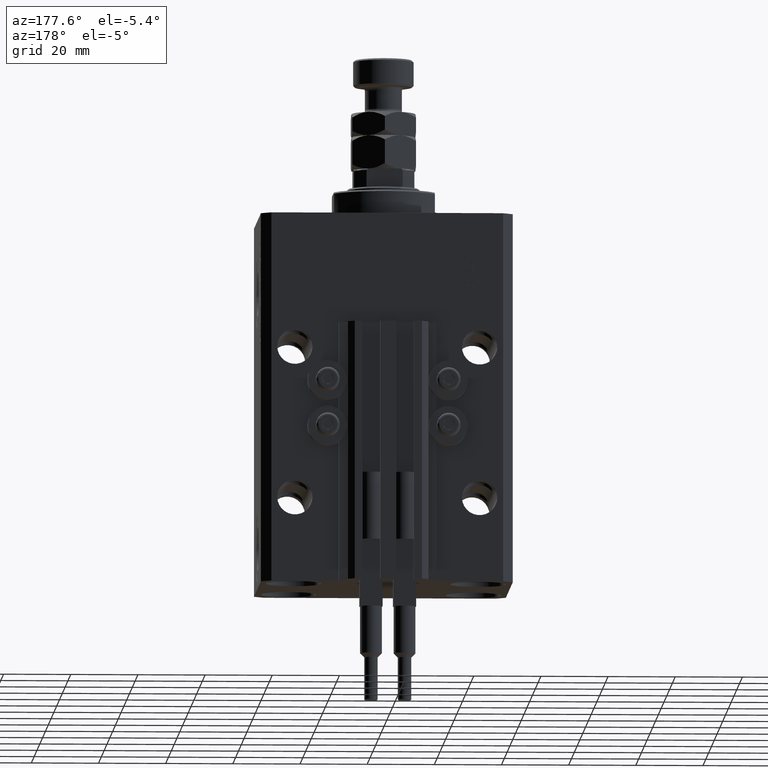
[diagram: clean part render]
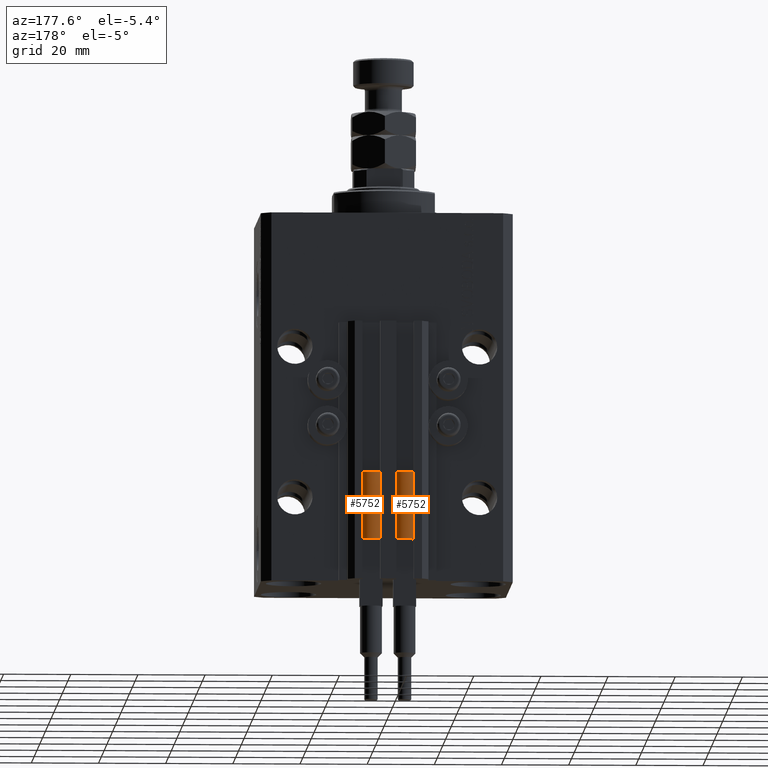
[diagram: same view with one multi-face feature highlighted, each face labeled with its STEP entity id]
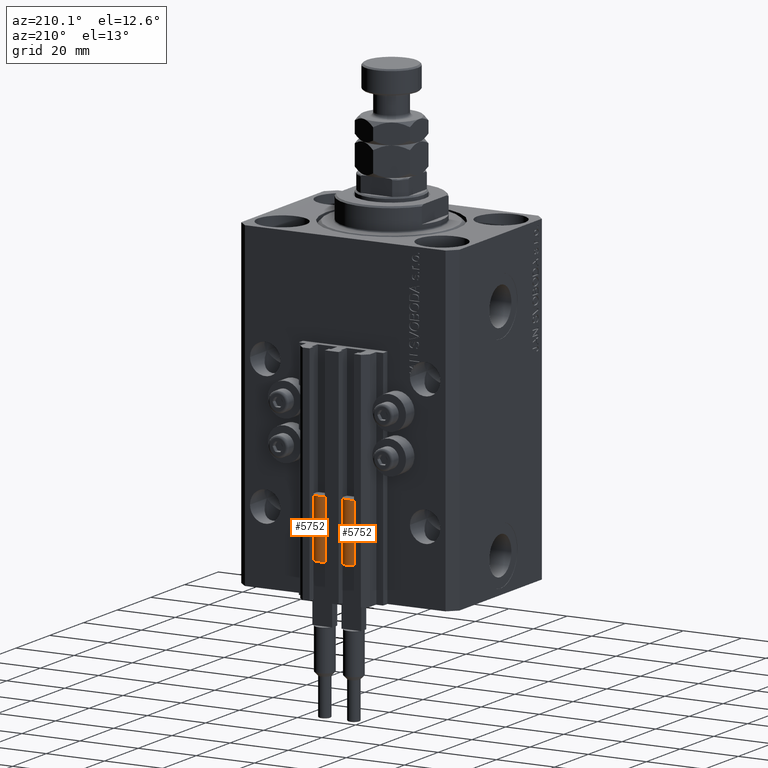
[diagram: same view with one multi-face feature highlighted, each face labeled with its STEP entity id]
A machine part, auxiliary view. The highlighted faces form ONE feature: a constant-radius fillet chain: 2 tangent blend faces with common blend radius 3.4 mm. The faces share edges in the B-rep.
A second angle (auxiliary view) of the same feature is appended — it is thin or edge-on in the first view.
Their STEP definitions:
[1] entity #5752 (Cylinder):
#429 = CARTESIAN_POINT ( 'NONE',  ( 0.000000000000000000, 0.000000000000000000, 0.000000000000000000 ) ) ;
#857 = CYLINDRICAL_SURFACE ( 'NONE', #22533, 3.400000000000000355 ) ;
#1163 = DIRECTION ( 'NONE',  ( 0.000000000000000000, 0.000000000000000000, 1.000000000000000000 ) ) ;
#2169 = AXIS2_PLACEMENT_3D ( 'NONE', #31181, #46725, #26878 ) ;
#3287 = CIRCLE ( 'NONE', #39880, 3.400000000000000355 ) ;
#3707 = EDGE_LOOP ( 'NONE', ( #19963, #23139, #41850, #28793, #45901, #39723 ) ) ;
#4697 = EDGE_CURVE ( 'NONE', #23171, #24085, #47247, .T. ) ;
#4922 = CARTESIAN_POINT ( 'NONE',  ( 3.051229260478471428, 1.500000000000000000, 20.00000000000000000 ) ) ;
#5244 = DIRECTION ( 'NONE',  ( 1.000000000000000000, 0.000000000000000000, 0.000000000000000000 ) ) ;
#5752 = ADVANCED_FACE ( 'NONE', ( #35721 ), #857, .T. ) ;
#6885 = CARTESIAN_POINT ( 'NONE',  ( 3.400000000000000355, 0.000000000000000000, 20.00000000000000000 ) ) ;
#7897 = EDGE_CURVE ( 'NONE', #49278, #45782, #49446, .T. ) ;
#8793 = DIRECTION ( 'NONE',  ( -0.000000000000000000, -0.000000000000000000, -1.000000000000000000 ) ) ;
#12223 = EDGE_CURVE ( 'NONE', #24085, #33736, #3287, .T. ) ;
#12949 = CARTESIAN_POINT ( 'NONE',  ( -3.399999999999999467, -4.915049848600952119E-16, 20.00000000000000000 ) ) ;
#13635 = CARTESIAN_POINT ( 'NONE',  ( -3.400000000000000355, 0.000000000000000000, 20.00000000000000000 ) ) ;
#14218 = EDGE_CURVE ( 'NONE', #23171, #49278, #17205, .T. ) ;
#15620 = DIRECTION ( 'NONE',  ( -1.000000000000000000, 0.000000000000000000, 0.000000000000000000 ) ) ;
#15673 = DIRECTION ( 'NONE',  ( 0.000000000000000000, 0.000000000000000000, 1.000000000000000000 ) ) ;
#16120 = CARTESIAN_POINT ( 'NONE',  ( 0.000000000000000000, 0.000000000000000000, 20.00000000000000000 ) ) ;
#17205 = CIRCLE ( 'NONE', #20437, 3.400000000000000355 ) ;
#18062 = CARTESIAN_POINT ( 'NONE',  ( -3.400000000000000355, 0.000000000000000000, 0.000000000000000000 ) ) ;
#19963 = ORIENTED_EDGE ( 'NONE', *, *, #14218, .F. ) ;
#20437 = AXIS2_PLACEMENT_3D ( 'NONE', #40341, #1163, #5244 ) ;
#21880 = VECTOR ( 'NONE', #28408, 1000.000000000000000 ) ;
#22509 = CIRCLE ( 'NONE', #2169, 3.400000000000000355 ) ;
#22533 = AXIS2_PLACEMENT_3D ( 'NONE', #16120, #27592, #15620 ) ;
#23139 = ORIENTED_EDGE ( 'NONE', *, *, #4697, .T. ) ;
#23171 = VERTEX_POINT ( 'NONE', #6885 ) ;
#23322 = DIRECTION ( 'NONE',  ( 1.000000000000000000, 0.000000000000000000, 0.000000000000000000 ) ) ;
#24071 = CARTESIAN_POINT ( 'NONE',  ( 3.400000000000000355, 4.163799117101001052E-16, 20.00000000000000000 ) ) ;
#24085 = VERTEX_POINT ( 'NONE', #44988 ) ;
#26878 = DIRECTION ( 'NONE',  ( 1.000000000000000000, 0.000000000000000000, 0.000000000000000000 ) ) ;
#26879 = CARTESIAN_POINT ( 'NONE',  ( -3.051229260478471428, 1.500000000000000000, 20.00000000000000000 ) ) ;
#27493 = AXIS2_PLACEMENT_3D ( 'NONE', #30951, #15673, #23322 ) ;
#27592 = DIRECTION ( 'NONE',  ( -0.000000000000000000, -0.000000000000000000, -1.000000000000000000 ) ) ;
#27930 = DIRECTION ( 'NONE',  ( 1.000000000000000000, 0.000000000000000000, 0.000000000000000000 ) ) ;
#28408 = DIRECTION ( 'NONE',  ( -0.000000000000000000, -0.000000000000000000, -1.000000000000000000 ) ) ;
#28793 = ORIENTED_EDGE ( 'NONE', *, *, #50219, .F. ) ;
#30355 = VERTEX_POINT ( 'NONE', #12949 ) ;
#30951 = CARTESIAN_POINT ( 'NONE',  ( 0.000000000000000000, 0.000000000000000000, 20.00000000000000000 ) ) ;
#31181 = CARTESIAN_POINT ( 'NONE',  ( 0.000000000000000000, 0.000000000000000000, 20.00000000000000000 ) ) ;
#33736 = VERTEX_POINT ( 'NONE', #18062 ) ;
#35721 = FACE_OUTER_BOUND ( 'NONE', #3707, .T. ) ;
#37112 = VECTOR ( 'NONE', #8793, 1000.000000000000000 ) ;
#39723 = ORIENTED_EDGE ( 'NONE', *, *, #7897, .F. ) ;
#39880 = AXIS2_PLACEMENT_3D ( 'NONE', #429, #46770, #27930 ) ;
#40341 = CARTESIAN_POINT ( 'NONE',  ( 0.000000000000000000, 0.000000000000000000, 20.00000000000000000 ) ) ;
#41017 = EDGE_CURVE ( 'NONE', #45782, #30355, #22509, .T. ) ;
#41850 = ORIENTED_EDGE ( 'NONE', *, *, #12223, .T. ) ;
#44432 = LINE ( 'NONE', #13635, #21880 ) ;
#44988 = CARTESIAN_POINT ( 'NONE',  ( 3.400000000000000355, 4.163799117101001052E-16, 0.000000000000000000 ) ) ;
#45782 = VERTEX_POINT ( 'NONE', #26879 ) ;
#45901 = ORIENTED_EDGE ( 'NONE', *, *, #41017, .F. ) ;
#46725 = DIRECTION ( 'NONE',  ( 0.000000000000000000, 0.000000000000000000, 1.000000000000000000 ) ) ;
#46770 = DIRECTION ( 'NONE',  ( 0.000000000000000000, 0.000000000000000000, 1.000000000000000000 ) ) ;
#47247 = LINE ( 'NONE', #24071, #37112 ) ;
#49278 = VERTEX_POINT ( 'NONE', #4922 ) ;
#49446 = CIRCLE ( 'NONE', #27493, 3.400000000000000355 ) ;
#50219 = EDGE_CURVE ( 'NONE', #30355, #33736, #44432, .T. ) ;
[2] entity #5752 (Cylinder):
#429 = CARTESIAN_POINT ( 'NONE',  ( 0.000000000000000000, 0.000000000000000000, 0.000000000000000000 ) ) ;
#857 = CYLINDRICAL_SURFACE ( 'NONE', #22533, 3.400000000000000355 ) ;
#1163 = DIRECTION ( 'NONE',  ( 0.000000000000000000, 0.000000000000000000, 1.000000000000000000 ) ) ;
#2169 = AXIS2_PLACEMENT_3D ( 'NONE', #31181, #46725, #26878 ) ;
#3287 = CIRCLE ( 'NONE', #39880, 3.400000000000000355 ) ;
#3707 = EDGE_LOOP ( 'NONE', ( #19963, #23139, #41850, #28793, #45901, #39723 ) ) ;
#4697 = EDGE_CURVE ( 'NONE', #23171, #24085, #47247, .T. ) ;
#4922 = CARTESIAN_POINT ( 'NONE',  ( 3.051229260478471428, 1.500000000000000000, 20.00000000000000000 ) ) ;
#5244 = DIRECTION ( 'NONE',  ( 1.000000000000000000, 0.000000000000000000, 0.000000000000000000 ) ) ;
#5752 = ADVANCED_FACE ( 'NONE', ( #35721 ), #857, .T. ) ;
#6885 = CARTESIAN_POINT ( 'NONE',  ( 3.400000000000000355, 0.000000000000000000, 20.00000000000000000 ) ) ;
#7897 = EDGE_CURVE ( 'NONE', #49278, #45782, #49446, .T. ) ;
#8793 = DIRECTION ( 'NONE',  ( -0.000000000000000000, -0.000000000000000000, -1.000000000000000000 ) ) ;
#12223 = EDGE_CURVE ( 'NONE', #24085, #33736, #3287, .T. ) ;
#12949 = CARTESIAN_POINT ( 'NONE',  ( -3.399999999999999467, -4.915049848600952119E-16, 20.00000000000000000 ) ) ;
#13635 = CARTESIAN_POINT ( 'NONE',  ( -3.400000000000000355, 0.000000000000000000, 20.00000000000000000 ) ) ;
#14218 = EDGE_CURVE ( 'NONE', #23171, #49278, #17205, .T. ) ;
#15620 = DIRECTION ( 'NONE',  ( -1.000000000000000000, 0.000000000000000000, 0.000000000000000000 ) ) ;
#15673 = DIRECTION ( 'NONE',  ( 0.000000000000000000, 0.000000000000000000, 1.000000000000000000 ) ) ;
#16120 = CARTESIAN_POINT ( 'NONE',  ( 0.000000000000000000, 0.000000000000000000, 20.00000000000000000 ) ) ;
#17205 = CIRCLE ( 'NONE', #20437, 3.400000000000000355 ) ;
#18062 = CARTESIAN_POINT ( 'NONE',  ( -3.400000000000000355, 0.000000000000000000, 0.000000000000000000 ) ) ;
#19963 = ORIENTED_EDGE ( 'NONE', *, *, #14218, .F. ) ;
#20437 = AXIS2_PLACEMENT_3D ( 'NONE', #40341, #1163, #5244 ) ;
#21880 = VECTOR ( 'NONE', #28408, 1000.000000000000000 ) ;
#22509 = CIRCLE ( 'NONE', #2169, 3.400000000000000355 ) ;
#22533 = AXIS2_PLACEMENT_3D ( 'NONE', #16120, #27592, #15620 ) ;
#23139 = ORIENTED_EDGE ( 'NONE', *, *, #4697, .T. ) ;
#23171 = VERTEX_POINT ( 'NONE', #6885 ) ;
#23322 = DIRECTION ( 'NONE',  ( 1.000000000000000000, 0.000000000000000000, 0.000000000000000000 ) ) ;
#24071 = CARTESIAN_POINT ( 'NONE',  ( 3.400000000000000355, 4.163799117101001052E-16, 20.00000000000000000 ) ) ;
#24085 = VERTEX_POINT ( 'NONE', #44988 ) ;
#26878 = DIRECTION ( 'NONE',  ( 1.000000000000000000, 0.000000000000000000, 0.000000000000000000 ) ) ;
#26879 = CARTESIAN_POINT ( 'NONE',  ( -3.051229260478471428, 1.500000000000000000, 20.00000000000000000 ) ) ;
#27493 = AXIS2_PLACEMENT_3D ( 'NONE', #30951, #15673, #23322 ) ;
#27592 = DIRECTION ( 'NONE',  ( -0.000000000000000000, -0.000000000000000000, -1.000000000000000000 ) ) ;
#27930 = DIRECTION ( 'NONE',  ( 1.000000000000000000, 0.000000000000000000, 0.000000000000000000 ) ) ;
#28408 = DIRECTION ( 'NONE',  ( -0.000000000000000000, -0.000000000000000000, -1.000000000000000000 ) ) ;
#28793 = ORIENTED_EDGE ( 'NONE', *, *, #50219, .F. ) ;
#30355 = VERTEX_POINT ( 'NONE', #12949 ) ;
#30951 = CARTESIAN_POINT ( 'NONE',  ( 0.000000000000000000, 0.000000000000000000, 20.00000000000000000 ) ) ;
#31181 = CARTESIAN_POINT ( 'NONE',  ( 0.000000000000000000, 0.000000000000000000, 20.00000000000000000 ) ) ;
#33736 = VERTEX_POINT ( 'NONE', #18062 ) ;
#35721 = FACE_OUTER_BOUND ( 'NONE', #3707, .T. ) ;
#37112 = VECTOR ( 'NONE', #8793, 1000.000000000000000 ) ;
#39723 = ORIENTED_EDGE ( 'NONE', *, *, #7897, .F. ) ;
#39880 = AXIS2_PLACEMENT_3D ( 'NONE', #429, #46770, #27930 ) ;
#40341 = CARTESIAN_POINT ( 'NONE',  ( 0.000000000000000000, 0.000000000000000000, 20.00000000000000000 ) ) ;
#41017 = EDGE_CURVE ( 'NONE', #45782, #30355, #22509, .T. ) ;
#41850 = ORIENTED_EDGE ( 'NONE', *, *, #12223, .T. ) ;
#44432 = LINE ( 'NONE', #13635, #21880 ) ;
#44988 = CARTESIAN_POINT ( 'NONE',  ( 3.400000000000000355, 4.163799117101001052E-16, 0.000000000000000000 ) ) ;
#45782 = VERTEX_POINT ( 'NONE', #26879 ) ;
#45901 = ORIENTED_EDGE ( 'NONE', *, *, #41017, .F. ) ;
#46725 = DIRECTION ( 'NONE',  ( 0.000000000000000000, 0.000000000000000000, 1.000000000000000000 ) ) ;
#46770 = DIRECTION ( 'NONE',  ( 0.000000000000000000, 0.000000000000000000, 1.000000000000000000 ) ) ;
#47247 = LINE ( 'NONE', #24071, #37112 ) ;
#49278 = VERTEX_POINT ( 'NONE', #4922 ) ;
#49446 = CIRCLE ( 'NONE', #27493, 3.400000000000000355 ) ;
#50219 = EDGE_CURVE ( 'NONE', #30355, #33736, #44432, .T. ) ;